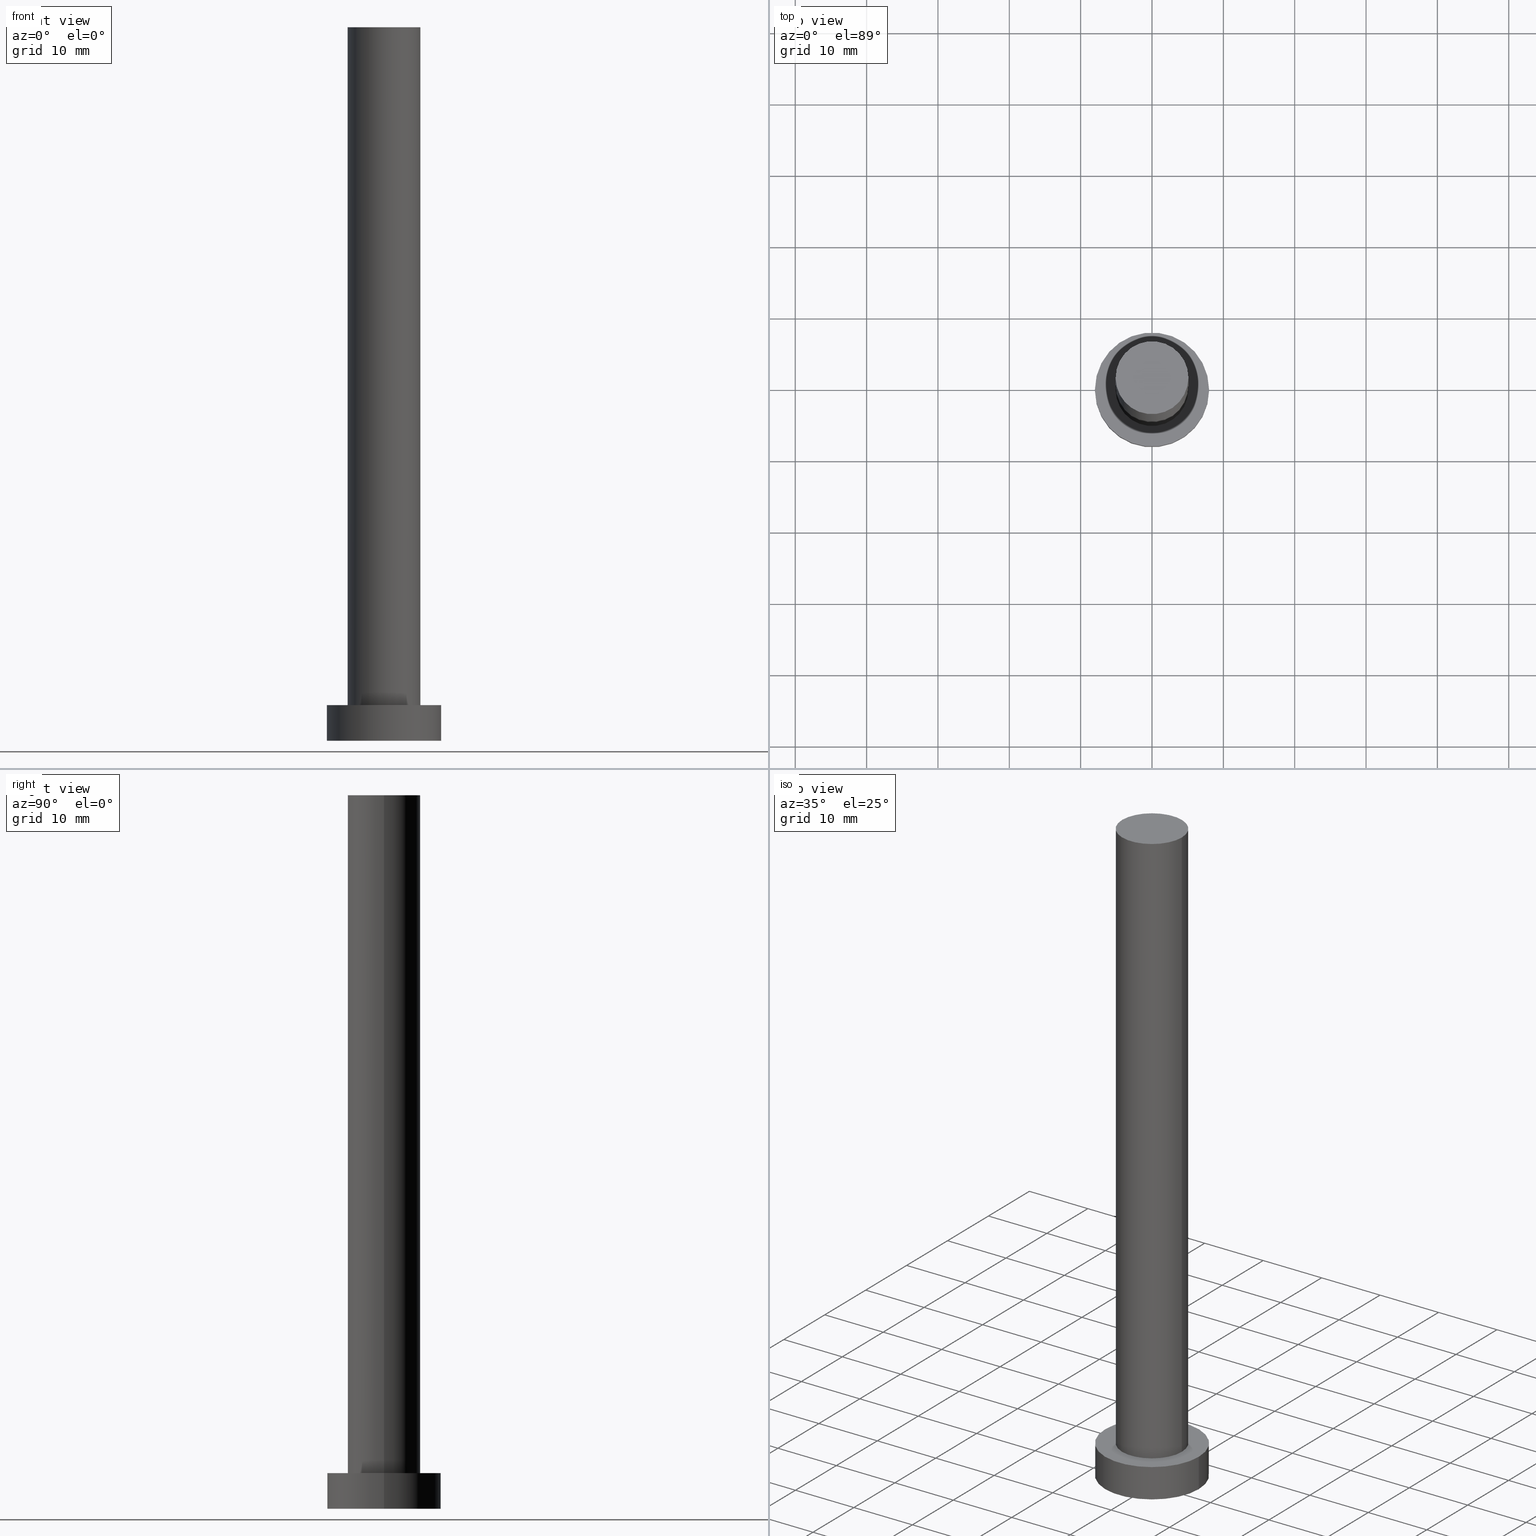
[diagram: canonical four-view strip — front | top / right | iso, engineering-drawing reading convention]
A machine part, canonical four-view strip (front | top / right | iso — engineering-drawing reading convention). The complete STEP part file that produces these views, byte-faithful:
ISO-10303-21;
HEADER;
FILE_DESCRIPTION (( 'STEP AP203' ),
    '1' );
FILE_NAME ('4b7d.STEP',
    '2023-02-12T11:25:36',
    ( '' ),
    ( '' ),
    'SwSTEP 2.0',
    'SolidWorks 2019',
    '' );
FILE_SCHEMA (( 'CONFIG_CONTROL_DESIGN' ));
ENDSEC;

DATA;
#1 = DATE_AND_TIME ( #97, #207 ) ;
#2 = CC_DESIGN_APPROVAL ( #106, ( #194 ) ) ;
#3 = DATE_TIME_ROLE ( 'classification_date' ) ;
#4 = EDGE_CURVE ( 'NONE', #168, #247, #155, .T. ) ;
#5 = PERSON_AND_ORGANIZATION_ROLE ( 'creator' ) ;
#6 = EDGE_LOOP ( 'NONE', ( #191, #111, #104, #48 ) ) ;
#7 = CALENDAR_DATE ( 2023, 12, 2 ) ;
#8 = ORIENTED_EDGE ( 'NONE', *, *, #36, .F. ) ;
#9 = DIRECTION ( 'NONE',  ( 0.000000000000000000, 0.000000000000000000, 1.000000000000000000 ) ) ;
#10 = APPROVAL_DATE_TIME ( #51, #202 ) ;
#11 = CC_DESIGN_PERSON_AND_ORGANIZATION_ASSIGNMENT ( #242, #148, ( #122 ) ) ;
#12 = ORIENTED_EDGE ( 'NONE', *, *, #113, .F. ) ;
#13 = LINE ( 'NONE', #14, #27 ) ;
#14 = CARTESIAN_POINT ( 'NONE',  ( -5.100000000000001421, 0.000000000000000000, 100.0000000000000000 ) ) ;
#15 = CC_DESIGN_SECURITY_CLASSIFICATION ( #239, ( #65 ) ) ;
#16 = ORIENTED_EDGE ( 'NONE', *, *, #39, .F. ) ;
#17 = PERSON_AND_ORGANIZATION ( #66, #28 ) ;
#18 = CYLINDRICAL_SURFACE ( 'NONE', #142, 8.000000000000000000 ) ;
#19 = PERSON_AND_ORGANIZATION ( #66, #28 ) ;
#20 = APPROVAL_PERSON_ORGANIZATION ( #17, #202, #63 ) ;
#21 = DIRECTION ( 'NONE',  ( 1.000000000000000000, 0.000000000000000000, 0.000000000000000000 ) ) ;
#22 = ADVANCED_FACE ( 'NONE', ( #252 ), #132, .T. ) ;
#23 = CARTESIAN_POINT ( 'NONE',  ( 0.000000000000000000, 0.000000000000000000, 5.000000000000000000 ) ) ;
#24 = COORDINATED_UNIVERSAL_TIME_OFFSET ( 1, 0, .AHEAD. ) ;
#25 = PERSON_AND_ORGANIZATION_ROLE ( 'classification_officer' ) ;
#26 = DIRECTION ( 'NONE',  ( -1.000000000000000000, 0.000000000000000000, 0.000000000000000000 ) ) ;
#27 = VECTOR ( 'NONE', #160, 1000.000000000000000 ) ;
#28 = ORGANIZATION ( 'NEUR�EN�', 'NEUR�EN�', '' ) ;
#29 = ADVANCED_FACE ( 'NONE', ( #249 ), #75, .F. ) ;
#30 = CARTESIAN_POINT ( 'NONE',  ( 0.000000000000000000, 0.000000000000000000, 5.000000000000000000 ) ) ;
#31 = DIRECTION ( 'NONE',  ( 0.000000000000000000, 0.000000000000000000, 1.000000000000000000 ) ) ;
#32 = PRODUCT_DEFINITION_SHAPE ( 'NONE', 'NONE',  #194 ) ;
#33 = ADVANCED_FACE ( 'NONE', ( #151, #112 ), #210, .T. ) ;
#34 = EDGE_LOOP ( 'NONE', ( #8, #12 ) ) ;
#35 = AXIS2_PLACEMENT_3D ( 'NONE', #59, #227, #37 ) ;
#36 = EDGE_CURVE ( 'NONE', #140, #62, #120, .T. ) ;
#37 = DIRECTION ( 'NONE',  ( -1.000000000000000000, 0.000000000000000000, 0.000000000000000000 ) ) ;
#38 = VERTEX_POINT ( 'NONE', #72 ) ;
#39 = EDGE_CURVE ( 'NONE', #167, #38, #153, .T. ) ;
#40 = CIRCLE ( 'NONE', #93, 8.000000000000000000 ) ;
#41 = COORDINATED_UNIVERSAL_TIME_OFFSET ( 1, 0, .AHEAD. ) ;
#42 = ORIENTED_EDGE ( 'NONE', *, *, #4, .F. ) ;
#43 = AXIS2_PLACEMENT_3D ( 'NONE', #206, #176, #71 ) ;
#44 = EDGE_CURVE ( 'NONE', #232, #46, #84, .T. ) ;
#45 = DIRECTION ( 'NONE',  ( -1.000000000000000000, 0.000000000000000000, 0.000000000000000000 ) ) ;
#46 = VERTEX_POINT ( 'NONE', #180 ) ;
#47 = PLANE ( 'NONE',  #251 ) ;
#48 = ORIENTED_EDGE ( 'NONE', *, *, #64, .F. ) ;
#49 = CARTESIAN_POINT ( 'NONE',  ( 8.000000000000000000, 9.797174393178825657E-16, 0.000000000000000000 ) ) ;
#50 = DIRECTION ( 'NONE',  ( 1.000000000000000000, 0.000000000000000000, -0.000000000000000000 ) ) ;
#51 = DATE_AND_TIME ( #244, #133 ) ;
#52 = CARTESIAN_POINT ( 'NONE',  ( -8.000000000000000000, 0.000000000000000000, 5.000000000000000000 ) ) ;
#53 = APPROVAL_ROLE ( '' ) ;
#54 = DIRECTION ( 'NONE',  ( 1.000000000000000000, 0.000000000000000000, 0.000000000000000000 ) ) ;
#55 =( LENGTH_UNIT ( ) NAMED_UNIT ( * ) SI_UNIT ( .MILLI., .METRE. ) );
#56 = CLOSED_SHELL ( 'NONE', ( #137, #73, #156, #33, #29, #22, #170 ) ) ;
#57 = DIRECTION ( 'NONE',  ( 0.000000000000000000, 0.000000000000000000, 1.000000000000000000 ) ) ;
#58 = CC_DESIGN_DATE_AND_TIME_ASSIGNMENT ( #89, #240, ( #194 ) ) ;
#59 = CARTESIAN_POINT ( 'NONE',  ( 0.000000000000000000, 0.000000000000000000, 5.000000000000000000 ) ) ;
#60 = APPROVAL ( #80, 'NEUR�EN�' ) ;
#61 = DIRECTION ( 'NONE',  ( 0.000000000000000000, 0.000000000000000000, 1.000000000000000000 ) ) ;
#62 = VERTEX_POINT ( 'NONE', #228 ) ;
#63 = APPROVAL_ROLE ( '' ) ;
#64 = EDGE_CURVE ( 'NONE', #232, #140, #13, .T. ) ;
#65 = PRODUCT_DEFINITION_FORMATION_WITH_SPECIFIED_SOURCE ( 'LIBOVOLN�', '', #122, .NOT_KNOWN. ) ;
#66 = PERSON ( 'NEUR�EN�', 'NEUR�EN�', 'NEUR�EN�', ('NEUR�EN�'), ('NEUR�EN�'), ('NEUR�EN�') ) ;
#67 = DIRECTION ( 'NONE',  ( -0.000000000000000000, -0.000000000000000000, -1.000000000000000000 ) ) ;
#68 = DATE_AND_TIME ( #241, #245 ) ;
#69 = APPLICATION_CONTEXT ( 'configuration controlled 3d designs of mechanical parts and assemblies' ) ;
#70 = LINE ( 'NONE', #128, #126 ) ;
#71 = DIRECTION ( 'NONE',  ( -1.000000000000000000, 0.000000000000000000, 0.000000000000000000 ) ) ;
#72 = CARTESIAN_POINT ( 'NONE',  ( -8.000000000000000000, 0.000000000000000000, 0.000000000000000000 ) ) ;
#73 = ADVANCED_FACE ( 'NONE', ( #100 ), #230, .T. ) ;
#74 = ORIENTED_EDGE ( 'NONE', *, *, #150, .F. ) ;
#75 = PLANE ( 'NONE',  #115 ) ;
#76 = AXIS2_PLACEMENT_3D ( 'NONE', #214, #197, #200 ) ;
#77 = AXIS2_PLACEMENT_3D ( 'NONE', #90, #186, #92 ) ;
#78 = DIRECTION ( 'NONE',  ( 0.000000000000000000, 0.000000000000000000, 1.000000000000000000 ) ) ;
#79 = ADVANCED_BREP_SHAPE_REPRESENTATION ( '4b7d', ( #157, #77 ), #216 ) ;
#80 = APPROVAL_STATUS ( 'not_yet_approved' ) ;
#81 = DESIGN_CONTEXT ( 'detailed design', #69, 'design' ) ;
#82 = APPROVAL_ROLE ( '' ) ;
#83 = LOCAL_TIME ( 12, 25, 36.00000000000000000, #24 ) ;
#84 = CIRCLE ( 'NONE', #222, 5.100000000000001421 ) ;
#85 = ORIENTED_EDGE ( 'NONE', *, *, #209, .F. ) ;
#86 = ORIENTED_EDGE ( 'NONE', *, *, #36, .T. ) ;
#87 = CC_DESIGN_DATE_AND_TIME_ASSIGNMENT ( #68, #3, ( #239 ) ) ;
#88 = CIRCLE ( 'NONE', #253, 5.100000000000001421 ) ;
#89 = DATE_AND_TIME ( #7, #145 ) ;
#90 = CARTESIAN_POINT ( 'NONE',  ( 0.000000000000000000, 0.000000000000000000, 0.000000000000000000 ) ) ;
#91 =( NAMED_UNIT ( * ) PLANE_ANGLE_UNIT ( ) SI_UNIT ( $, .RADIAN. ) );
#92 = DIRECTION ( 'NONE',  ( 1.000000000000000000, 0.000000000000000000, 0.000000000000000000 ) ) ;
#93 = AXIS2_PLACEMENT_3D ( 'NONE', #94, #189, #175 ) ;
#94 = CARTESIAN_POINT ( 'NONE',  ( 0.000000000000000000, 0.000000000000000000, 0.000000000000000000 ) ) ;
#95 = UNCERTAINTY_MEASURE_WITH_UNIT (LENGTH_MEASURE( 1.000000000000000082E-05 ), #55, 'distance_accuracy_value', 'NONE');
#96 = PERSON_AND_ORGANIZATION ( #66, #28 ) ;
#97 = CALENDAR_DATE ( 2023, 12, 2 ) ;
#98 = VECTOR ( 'NONE', #114, 1000.000000000000000 ) ;
#99 = EDGE_LOOP ( 'NONE', ( #195, #124, #166, #86 ) ) ;
#100 = FACE_OUTER_BOUND ( 'NONE', #203, .T. ) ;
#101 = CC_DESIGN_PERSON_AND_ORGANIZATION_ASSIGNMENT ( #220, #5, ( #194 ) ) ;
#102 = APPLICATION_PROTOCOL_DEFINITION ( 'international standard', 'config_control_design', 1994, #254 ) ;
#103 = PERSON_AND_ORGANIZATION_ROLE ( 'design_supplier' ) ;
#104 = ORIENTED_EDGE ( 'NONE', *, *, #113, .T. ) ;
#105 = PERSON_AND_ORGANIZATION ( #66, #28 ) ;
#106 = APPROVAL ( #172, 'NEUR�EN�' ) ;
#107 = EDGE_LOOP ( 'NONE', ( #226, #85 ) ) ;
#108 = VECTOR ( 'NONE', #177, 1000.000000000000000 ) ;
#109 = COORDINATED_UNIVERSAL_TIME_OFFSET ( 1, 0, .AHEAD. ) ;
#110 = DIRECTION ( 'NONE',  ( 1.000000000000000000, 0.000000000000000000, -0.000000000000000000 ) ) ;
#111 = ORIENTED_EDGE ( 'NONE', *, *, #190, .T. ) ;
#112 = FACE_OUTER_BOUND ( 'NONE', #125, .T. ) ;
#113 = EDGE_CURVE ( 'NONE', #62, #140, #238, .T. ) ;
#114 = DIRECTION ( 'NONE',  ( -0.000000000000000000, -0.000000000000000000, -1.000000000000000000 ) ) ;
#115 = AXIS2_PLACEMENT_3D ( 'NONE', #158, #57, #110 ) ;
#116 = DIRECTION ( 'NONE',  ( 0.000000000000000000, 0.000000000000000000, 1.000000000000000000 ) ) ;
#117 =( NAMED_UNIT ( * ) SI_UNIT ( $, .STERADIAN. ) SOLID_ANGLE_UNIT ( ) );
#118 = ORIENTED_EDGE ( 'NONE', *, *, #39, .T. ) ;
#119 = CARTESIAN_POINT ( 'NONE',  ( 0.000000000000000000, 0.000000000000000000, 5.000000000000000000 ) ) ;
#120 = CIRCLE ( 'NONE', #188, 5.100000000000001421 ) ;
#121 = ORIENTED_EDGE ( 'NONE', *, *, #4, .T. ) ;
#122 = PRODUCT ( '4b7d', '4b7d', '', ( #154 ) ) ;
#123 = SECURITY_CLASSIFICATION_LEVEL ( 'unclassified' ) ;
#124 = ORIENTED_EDGE ( 'NONE', *, *, #44, .F. ) ;
#125 = EDGE_LOOP ( 'NONE', ( #162, #215 ) ) ;
#126 = VECTOR ( 'NONE', #149, 1000.000000000000000 ) ;
#127 = APPLICATION_PROTOCOL_DEFINITION ( 'international standard', 'config_control_design', 1994, #69 ) ;
#128 = CARTESIAN_POINT ( 'NONE',  ( 5.100000000000001421, 6.245698675651502811E-16, 100.0000000000000000 ) ) ;
#129 = PERSON_AND_ORGANIZATION ( #66, #28 ) ;
#130 = CALENDAR_DATE ( 2023, 12, 2 ) ;
#131 = CARTESIAN_POINT ( 'NONE',  ( -5.100000000000001421, 0.000000000000000000, 100.0000000000000000 ) ) ;
#132 = CYLINDRICAL_SURFACE ( 'NONE', #43, 5.100000000000001421 ) ;
#133 = LOCAL_TIME ( 12, 25, 36.00000000000000000, #41 ) ;
#134 = SHAPE_DEFINITION_REPRESENTATION ( #32, #79 ) ;
#135 = EDGE_LOOP ( 'NONE', ( #212, #173 ) ) ;
#136 = CYLINDRICAL_SURFACE ( 'NONE', #181, 5.100000000000001421 ) ;
#137 = ADVANCED_FACE ( 'NONE', ( #255 ), #136, .T. ) ;
#138 = COORDINATED_UNIVERSAL_TIME_OFFSET ( 1, 0, .AHEAD. ) ;
#139 = PERSON_AND_ORGANIZATION_ROLE ( 'creator' ) ;
#140 = VERTEX_POINT ( 'NONE', #237 ) ;
#141 = CARTESIAN_POINT ( 'NONE',  ( 0.000000000000000000, 0.000000000000000000, 5.000000000000000000 ) ) ;
#142 = AXIS2_PLACEMENT_3D ( 'NONE', #119, #182, #45 ) ;
#143 = APPROVAL_PERSON_ORGANIZATION ( #96, #60, #82 ) ;
#144 = ORIENTED_EDGE ( 'NONE', *, *, #234, .T. ) ;
#145 = LOCAL_TIME ( 12, 25, 36.00000000000000000, #109 ) ;
#146 = EDGE_LOOP ( 'NONE', ( #42, #208, #118, #144 ) ) ;
#147 = EDGE_CURVE ( 'NONE', #167, #168, #165, .T. ) ;
#148 = PERSON_AND_ORGANIZATION_ROLE ( 'design_owner' ) ;
#149 = DIRECTION ( 'NONE',  ( -0.000000000000000000, -0.000000000000000000, -1.000000000000000000 ) ) ;
#150 = EDGE_CURVE ( 'NONE', #168, #167, #159, .T. ) ;
#151 = FACE_BOUND ( 'NONE', #34, .T. ) ;
#152 = CARTESIAN_POINT ( 'NONE',  ( 0.000000000000000000, 0.000000000000000000, 0.000000000000000000 ) ) ;
#153 = LINE ( 'NONE', #52, #98 ) ;
#154 = MECHANICAL_CONTEXT ( 'NONE', #254, 'mechanical' ) ;
#155 = LINE ( 'NONE', #243, #108 ) ;
#156 = ADVANCED_FACE ( 'NONE', ( #198 ), #18, .T. ) ;
#157 = MANIFOLD_SOLID_BREP ( 'P�idat vysunut�m3', #56 ) ;
#158 = CARTESIAN_POINT ( 'NONE',  ( 0.000000000000000000, 0.000000000000000000, 0.000000000000000000 ) ) ;
#159 = CIRCLE ( 'NONE', #76, 8.000000000000000000 ) ;
#160 = DIRECTION ( 'NONE',  ( -0.000000000000000000, -0.000000000000000000, -1.000000000000000000 ) ) ;
#161 = APPROVAL_PERSON_ORGANIZATION ( #183, #106, #53 ) ;
#162 = ORIENTED_EDGE ( 'NONE', *, *, #147, .T. ) ;
#163 = DIRECTION ( 'NONE',  ( 1.000000000000000000, 0.000000000000000000, 0.000000000000000000 ) ) ;
#164 = CIRCLE ( 'NONE', #211, 8.000000000000000000 ) ;
#165 = CIRCLE ( 'NONE', #196, 8.000000000000000000 ) ;
#166 = ORIENTED_EDGE ( 'NONE', *, *, #64, .T. ) ;
#167 = VERTEX_POINT ( 'NONE', #201 ) ;
#168 = VERTEX_POINT ( 'NONE', #184 ) ;
#169 = COORDINATED_UNIVERSAL_TIME_OFFSET ( 1, 0, .AHEAD. ) ;
#170 = ADVANCED_FACE ( 'NONE', ( #219 ), #47, .T. ) ;
#171 = CC_DESIGN_APPROVAL ( #202, ( #239 ) ) ;
#172 = APPROVAL_STATUS ( 'not_yet_approved' ) ;
#173 = ORIENTED_EDGE ( 'NONE', *, *, #231, .T. ) ;
#174 = DATE_AND_TIME ( #130, #83 ) ;
#175 = DIRECTION ( 'NONE',  ( 1.000000000000000000, 0.000000000000000000, 0.000000000000000000 ) ) ;
#176 = DIRECTION ( 'NONE',  ( -0.000000000000000000, -0.000000000000000000, -1.000000000000000000 ) ) ;
#177 = DIRECTION ( 'NONE',  ( -0.000000000000000000, -0.000000000000000000, -1.000000000000000000 ) ) ;
#178 = CC_DESIGN_PERSON_AND_ORGANIZATION_ASSIGNMENT ( #19, #103, ( #65 ) ) ;
#179 = CARTESIAN_POINT ( 'NONE',  ( 0.000000000000000000, 0.000000000000000000, 100.0000000000000000 ) ) ;
#180 = CARTESIAN_POINT ( 'NONE',  ( 5.100000000000001421, 6.245698675651502811E-16, 100.0000000000000000 ) ) ;
#181 = AXIS2_PLACEMENT_3D ( 'NONE', #199, #67, #26 ) ;
#182 = DIRECTION ( 'NONE',  ( -0.000000000000000000, -0.000000000000000000, -1.000000000000000000 ) ) ;
#183 = PERSON_AND_ORGANIZATION ( #66, #28 ) ;
#184 = CARTESIAN_POINT ( 'NONE',  ( 8.000000000000000000, 9.797174393178825657E-16, 5.000000000000000000 ) ) ;
#185 = CARTESIAN_POINT ( 'NONE',  ( 0.000000000000000000, 0.000000000000000000, 100.0000000000000000 ) ) ;
#186 = DIRECTION ( 'NONE',  ( 0.000000000000000000, 0.000000000000000000, 1.000000000000000000 ) ) ;
#187 = CARTESIAN_POINT ( 'NONE',  ( 0.000000000000000000, 0.000000000000000000, 100.0000000000000000 ) ) ;
#188 = AXIS2_PLACEMENT_3D ( 'NONE', #30, #9, #246 ) ;
#189 = DIRECTION ( 'NONE',  ( 0.000000000000000000, 0.000000000000000000, 1.000000000000000000 ) ) ;
#190 = EDGE_CURVE ( 'NONE', #46, #62, #70, .T. ) ;
#191 = ORIENTED_EDGE ( 'NONE', *, *, #231, .F. ) ;
#192 = CARTESIAN_POINT ( 'NONE',  ( 0.000000000000000000, 0.000000000000000000, 5.000000000000000000 ) ) ;
#193 = DIRECTION ( 'NONE',  ( 1.000000000000000000, 0.000000000000000000, 0.000000000000000000 ) ) ;
#194 = PRODUCT_DEFINITION ( 'NEZN�M�', '', #65, #81 ) ;
#195 = ORIENTED_EDGE ( 'NONE', *, *, #190, .F. ) ;
#196 = AXIS2_PLACEMENT_3D ( 'NONE', #23, #217, #21 ) ;
#197 = DIRECTION ( 'NONE',  ( 0.000000000000000000, 0.000000000000000000, 1.000000000000000000 ) ) ;
#198 = FACE_OUTER_BOUND ( 'NONE', #146, .T. ) ;
#199 = CARTESIAN_POINT ( 'NONE',  ( 0.000000000000000000, 0.000000000000000000, 100.0000000000000000 ) ) ;
#200 = DIRECTION ( 'NONE',  ( 1.000000000000000000, 0.000000000000000000, 0.000000000000000000 ) ) ;
#201 = CARTESIAN_POINT ( 'NONE',  ( -8.000000000000000000, 0.000000000000000000, 5.000000000000000000 ) ) ;
#202 = APPROVAL ( #235, 'NEUR�EN�' ) ;
#203 = EDGE_LOOP ( 'NONE', ( #74, #121, #236, #16 ) ) ;
#204 = DIRECTION ( 'NONE',  ( 1.000000000000000000, 0.000000000000000000, 0.000000000000000000 ) ) ;
#205 = DIRECTION ( 'NONE',  ( 1.000000000000000000, 0.000000000000000000, -0.000000000000000000 ) ) ;
#206 = CARTESIAN_POINT ( 'NONE',  ( 0.000000000000000000, 0.000000000000000000, 100.0000000000000000 ) ) ;
#207 = LOCAL_TIME ( 12, 25, 36.00000000000000000, #138 ) ;
#208 = ORIENTED_EDGE ( 'NONE', *, *, #147, .F. ) ;
#209 = EDGE_CURVE ( 'NONE', #247, #38, #164, .T. ) ;
#210 = PLANE ( 'NONE',  #229 ) ;
#211 = AXIS2_PLACEMENT_3D ( 'NONE', #152, #223, #204 ) ;
#212 = ORIENTED_EDGE ( 'NONE', *, *, #44, .T. ) ;
#213 = APPROVAL_DATE_TIME ( #1, #60 ) ;
#214 = CARTESIAN_POINT ( 'NONE',  ( 0.000000000000000000, 0.000000000000000000, 5.000000000000000000 ) ) ;
#215 = ORIENTED_EDGE ( 'NONE', *, *, #150, .T. ) ;
#216 =( GEOMETRIC_REPRESENTATION_CONTEXT ( 3 ) GLOBAL_UNCERTAINTY_ASSIGNED_CONTEXT ( ( #95 ) ) GLOBAL_UNIT_ASSIGNED_CONTEXT ( ( #55, #91, #117 ) ) REPRESENTATION_CONTEXT ( 'NONE', 'WORKASPACE' ) );
#217 = DIRECTION ( 'NONE',  ( 0.000000000000000000, 0.000000000000000000, 1.000000000000000000 ) ) ;
#218 = CC_DESIGN_PERSON_AND_ORGANIZATION_ASSIGNMENT ( #129, #139, ( #65 ) ) ;
#219 = FACE_OUTER_BOUND ( 'NONE', #135, .T. ) ;
#220 = PERSON_AND_ORGANIZATION ( #66, #28 ) ;
#221 = DIRECTION ( 'NONE',  ( 0.000000000000000000, 0.000000000000000000, 1.000000000000000000 ) ) ;
#222 = AXIS2_PLACEMENT_3D ( 'NONE', #179, #116, #163 ) ;
#223 = DIRECTION ( 'NONE',  ( 0.000000000000000000, 0.000000000000000000, 1.000000000000000000 ) ) ;
#224 = CC_DESIGN_APPROVAL ( #60, ( #65 ) ) ;
#225 = CC_DESIGN_PERSON_AND_ORGANIZATION_ASSIGNMENT ( #105, #25, ( #239 ) ) ;
#226 = ORIENTED_EDGE ( 'NONE', *, *, #234, .F. ) ;
#227 = DIRECTION ( 'NONE',  ( -0.000000000000000000, -0.000000000000000000, -1.000000000000000000 ) ) ;
#228 = CARTESIAN_POINT ( 'NONE',  ( 5.100000000000001421, 6.245698675651502811E-16, 5.000000000000000000 ) ) ;
#229 = AXIS2_PLACEMENT_3D ( 'NONE', #192, #78, #205 ) ;
#230 = CYLINDRICAL_SURFACE ( 'NONE', #35, 8.000000000000000000 ) ;
#231 = EDGE_CURVE ( 'NONE', #46, #232, #88, .T. ) ;
#232 = VERTEX_POINT ( 'NONE', #131 ) ;
#233 = AXIS2_PLACEMENT_3D ( 'NONE', #141, #61, #193 ) ;
#234 = EDGE_CURVE ( 'NONE', #38, #247, #40, .T. ) ;
#235 = APPROVAL_STATUS ( 'not_yet_approved' ) ;
#236 = ORIENTED_EDGE ( 'NONE', *, *, #209, .T. ) ;
#237 = CARTESIAN_POINT ( 'NONE',  ( -5.100000000000001421, 0.000000000000000000, 5.000000000000000000 ) ) ;
#238 = CIRCLE ( 'NONE', #233, 5.100000000000001421 ) ;
#239 = SECURITY_CLASSIFICATION ( '', '', #123 ) ;
#240 = DATE_TIME_ROLE ( 'creation_date' ) ;
#241 = CALENDAR_DATE ( 2023, 12, 2 ) ;
#242 = PERSON_AND_ORGANIZATION ( #66, #28 ) ;
#243 = CARTESIAN_POINT ( 'NONE',  ( 8.000000000000000000, 9.797174393178825657E-16, 5.000000000000000000 ) ) ;
#244 = CALENDAR_DATE ( 2023, 12, 2 ) ;
#245 = LOCAL_TIME ( 12, 25, 36.00000000000000000, #169 ) ;
#246 = DIRECTION ( 'NONE',  ( 1.000000000000000000, 0.000000000000000000, 0.000000000000000000 ) ) ;
#247 = VERTEX_POINT ( 'NONE', #49 ) ;
#248 = APPROVAL_DATE_TIME ( #174, #106 ) ;
#249 = FACE_OUTER_BOUND ( 'NONE', #107, .T. ) ;
#250 = PRODUCT_RELATED_PRODUCT_CATEGORY ( 'detail', '', ( #122 ) ) ;
#251 = AXIS2_PLACEMENT_3D ( 'NONE', #185, #221, #50 ) ;
#252 = FACE_OUTER_BOUND ( 'NONE', #99, .T. ) ;
#253 = AXIS2_PLACEMENT_3D ( 'NONE', #187, #31, #54 ) ;
#254 = APPLICATION_CONTEXT ( 'configuration controlled 3d designs of mechanical parts and assemblies' ) ;
#255 = FACE_OUTER_BOUND ( 'NONE', #6, .T. ) ;
ENDSEC;
END-ISO-10303-21;
